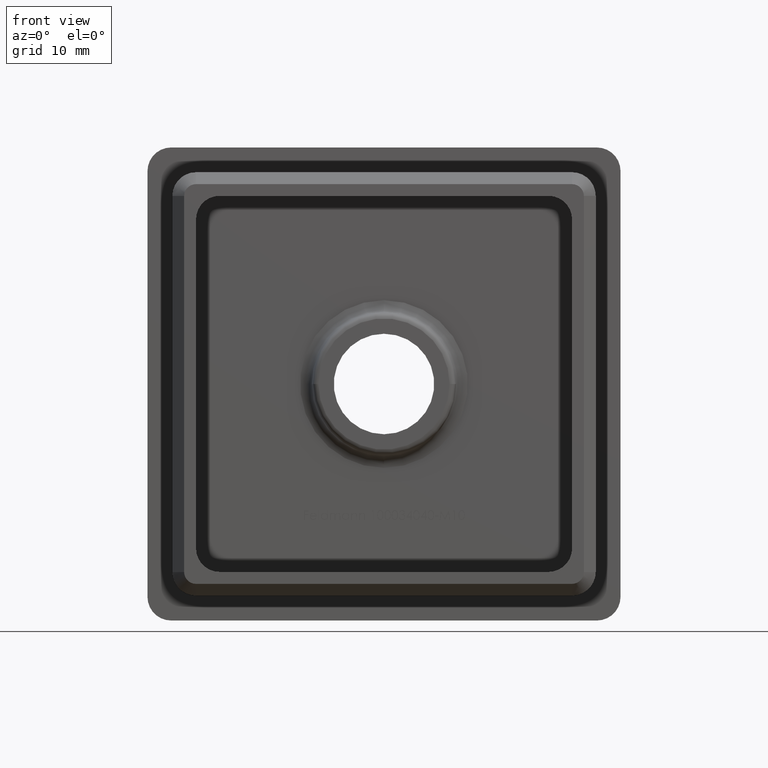
[diagram: clean part render]
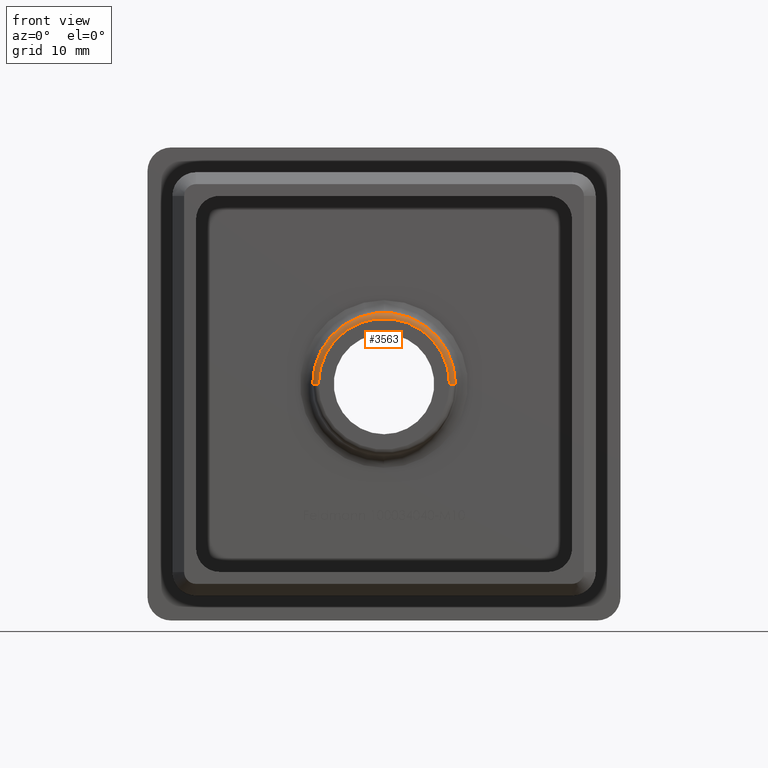
[diagram: same view with one face highlighted and labeled with its STEP entity id]
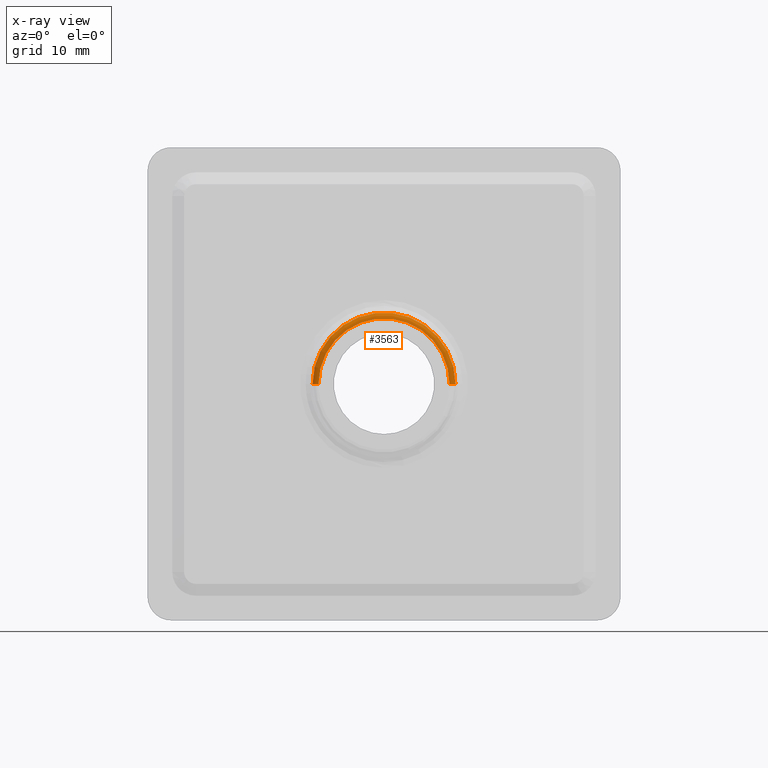
[diagram: x-ray of the same camera — body ghosted, the highlighted face saturated]
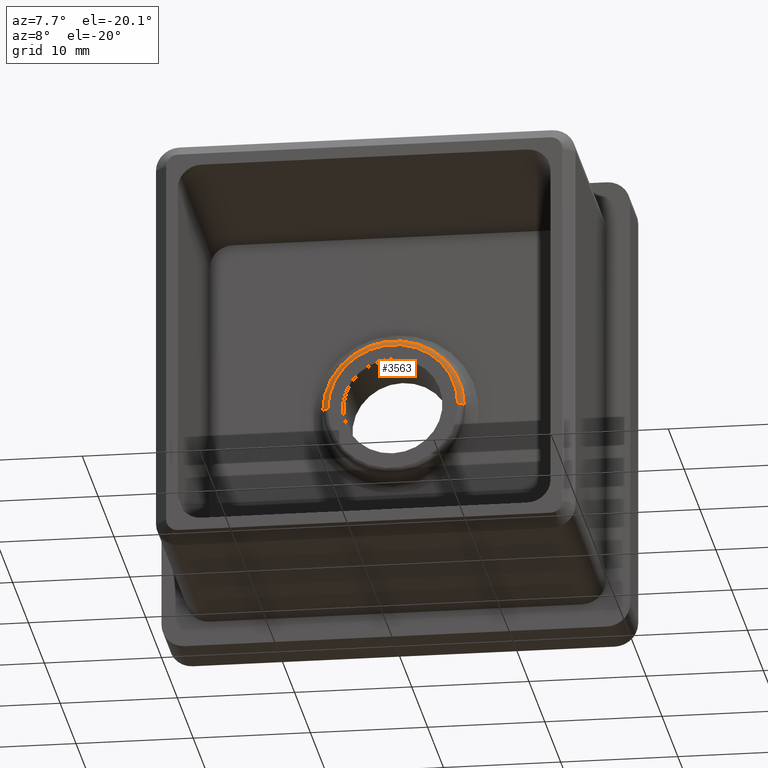
[diagram: same view with one face highlighted and labeled with its STEP entity id]
A machine part, front view. The second image highlights one B-rep face of the part: STEP entity #3563.
The next image is the same camera in x-ray: the body ghosted, the highlighted face saturated — about 0% of this face is hidden behind the body in this view.
A second angle (auxiliary view) of the same face is appended — the face is thin or edge-on in the first view.
In plain terms, the highlighted toroidal blend (fillet) surface has major radius 5.5418 mm and minor (blend) radius 0.5 mm.
Its self-contained STEP definition (entity closure, byte-faithful):
#506 = FACE_OUTER_BOUND ( 'NONE', #7438, .T. ) ;
#649 = VERTEX_POINT ( 'NONE', #4604 ) ;
#1087 = AXIS2_PLACEMENT_3D ( 'NONE', #9410, #6707, #9288 ) ;
#1259 = VERTEX_POINT ( 'NONE', #14296 ) ;
#1612 = EDGE_CURVE ( 'NONE', #649, #1886, #11381, .T. ) ;
#1886 = VERTEX_POINT ( 'NONE', #2846 ) ;
#2544 = AXIS2_PLACEMENT_3D ( 'NONE', #2626, #11625, #3920 ) ;
#2626 = CARTESIAN_POINT ( 'NONE',  ( 1.836970198721030900E-016, -1.500000000000000400, 0.0000000000000000000 ) ) ;
#2783 = EDGE_CURVE ( 'NONE', #1259, #10535, #3132, .T. ) ;
#2846 = CARTESIAN_POINT ( 'NONE',  ( -5.541834412991285300, -2.000000000000001300, 0.0000000000000000000 ) ) ;
#3114 = DIRECTION ( 'NONE',  ( 1.224646799147353500E-016, -1.000000000000000000, 0.0000000000000000000 ) ) ;
#3132 = CIRCLE ( 'NONE', #4789, 6.039931762037158000 ) ;
#3436 = DIRECTION ( 'NONE',  ( 1.000000000000000000, 0.0000000000000000000, 1.224646799147353500E-016 ) ) ;
#3515 = ORIENTED_EDGE ( 'NONE', *, *, #2783, .F. ) ;
#3563 = ADVANCED_FACE ( 'NONE', ( #506 ), #7351, .T. ) ;
#3920 = DIRECTION ( 'NONE',  ( -1.000000000000000000, -1.224646799147353500E-016, 0.0000000000000000000 ) ) ;
#4461 = ORIENTED_EDGE ( 'NONE', *, *, #9941, .F. ) ;
#4604 = CARTESIAN_POINT ( 'NONE',  ( 5.541834412991285300, -1.999999999999999600, 7.091786437360833800E-016 ) ) ;
#4620 = DIRECTION ( 'NONE',  ( -1.000000000000000000, -1.565116662372870400E-016, 0.0000000000000000000 ) ) ;
#4789 = AXIS2_PLACEMENT_3D ( 'NONE', #13898, #15182, #15442 ) ;
#4828 = CARTESIAN_POINT ( 'NONE',  ( 5.541834412991285300, -1.499999999999999800, 6.786789775274429000E-016 ) ) ;
#5001 = ORIENTED_EDGE ( 'NONE', *, *, #15224, .T. ) ;
#6040 = DIRECTION ( 'NONE',  ( -1.224646799147353200E-016, -1.499759782661857900E-032, 1.000000000000000000 ) ) ;
#6114 = ORIENTED_EDGE ( 'NONE', *, *, #1612, .F. ) ;
#6707 = DIRECTION ( 'NONE',  ( 0.0000000000000000000, -0.0000000000000000000, -1.000000000000000000 ) ) ;
#7278 = AXIS2_PLACEMENT_3D ( 'NONE', #16110, #3114, #4620 ) ;
#7351 = TOROIDAL_SURFACE ( 'NONE', #2544, 5.541834412991285300, 0.5000000000000000000 ) ;
#7438 = EDGE_LOOP ( 'NONE', ( #6114, #5001, #3515, #4461 ) ) ;
#9223 = CARTESIAN_POINT ( 'NONE',  ( 6.039931762037158000, -1.543577871373824000, 7.430572354351253200E-016 ) ) ;
#9288 = DIRECTION ( 'NONE',  ( -1.000000000000000000, 0.0000000000000000000, 0.0000000000000000000 ) ) ;
#9410 = CARTESIAN_POINT ( 'NONE',  ( -5.541834412991285300, -1.500000000000001100, 0.0000000000000000000 ) ) ;
#9941 = EDGE_CURVE ( 'NONE', #1886, #1259, #14902, .T. ) ;
#10058 = AXIS2_PLACEMENT_3D ( 'NONE', #4828, #6040, #3436 ) ;
#10535 = VERTEX_POINT ( 'NONE', #9223 ) ;
#11381 = CIRCLE ( 'NONE', #7278, 5.541834412991285300 ) ;
#11625 = DIRECTION ( 'NONE',  ( -1.224646799147353500E-016, 1.000000000000000000, -0.0000000000000000000 ) ) ;
#12259 = CIRCLE ( 'NONE', #10058, 0.4999999999999995600 ) ;
#13898 = CARTESIAN_POINT ( 'NONE',  ( 1.890337699412631400E-016, -1.543577871373824600, 0.0000000000000000000 ) ) ;
#14296 = CARTESIAN_POINT ( 'NONE',  ( -6.039931762037158000, -1.543577871373825300, 0.0000000000000000000 ) ) ;
#14902 = CIRCLE ( 'NONE', #1087, 0.4999999999999995600 ) ;
#15182 = DIRECTION ( 'NONE',  ( -1.224646799147353500E-016, 1.000000000000000000, -0.0000000000000000000 ) ) ;
#15224 = EDGE_CURVE ( 'NONE', #649, #10535, #12259, .T. ) ;
#15442 = DIRECTION ( 'NONE',  ( 1.000000000000000000, 1.077034193631177400E-016, 0.0000000000000000000 ) ) ;
#16110 = CARTESIAN_POINT ( 'NONE',  ( 2.449293598294707900E-016, -2.000000000000000400, 0.0000000000000000000 ) ) ;